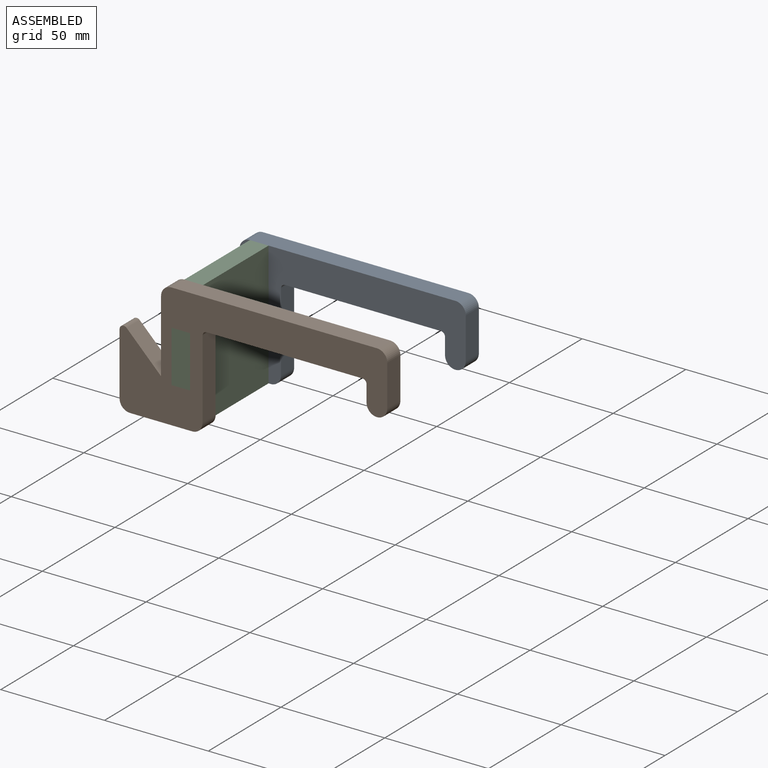
[diagram: assembled view]
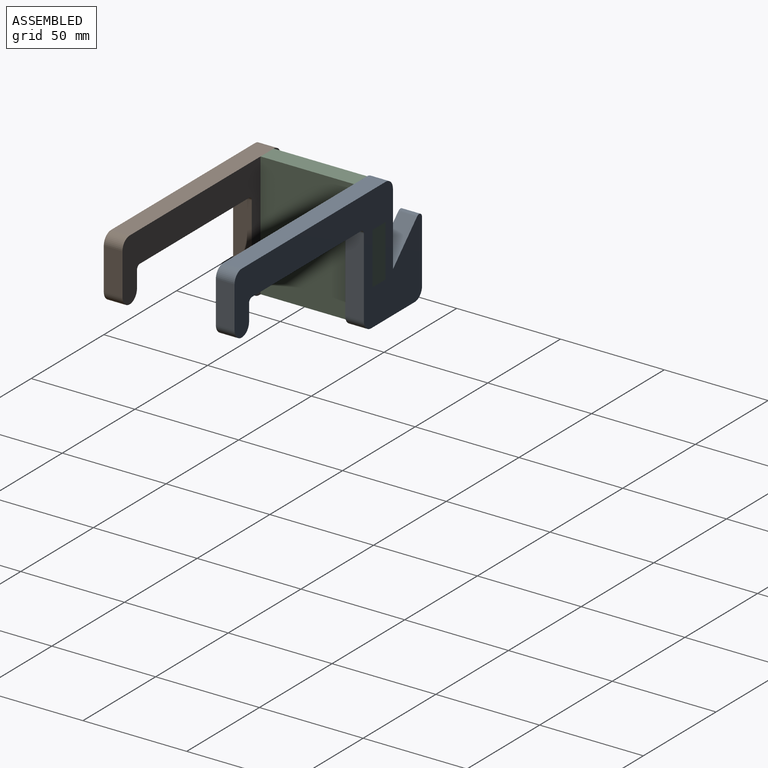
[diagram: assembled view, second angle]
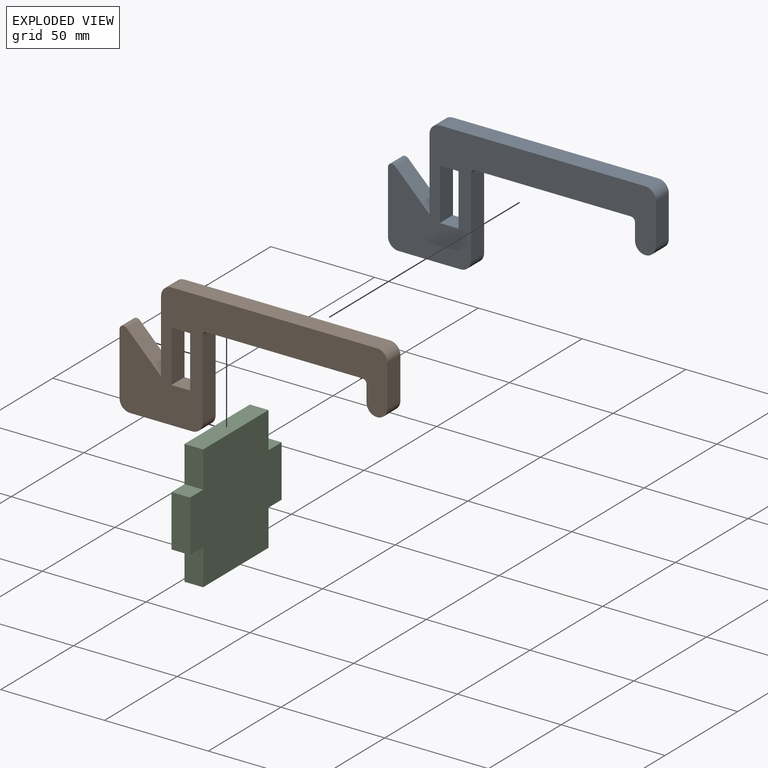
[diagram: exploded view]
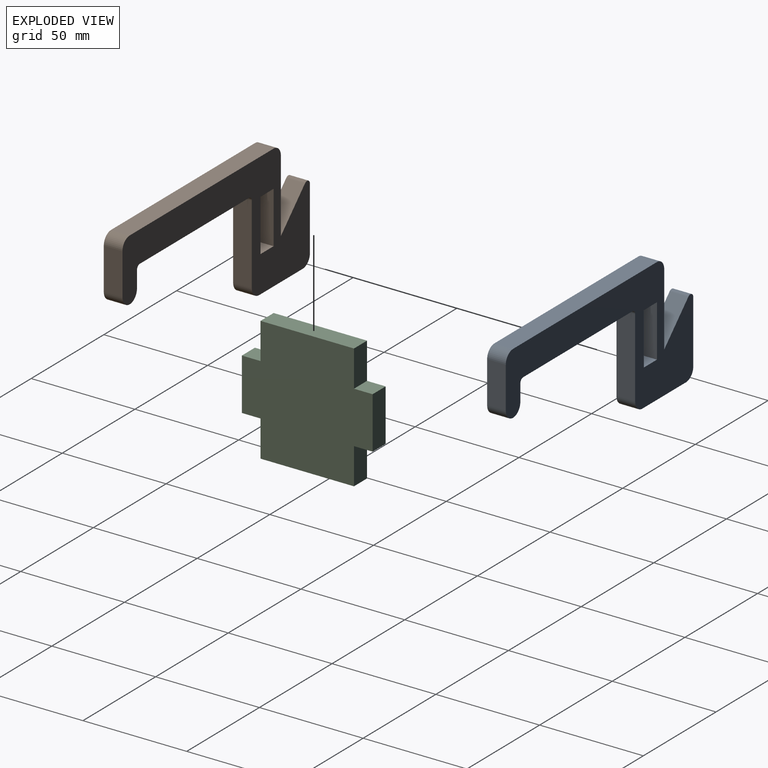
[diagram: exploded view, second angle]
ASSEMBLY  parts=3 mates=2
PART A: 23 faces, bbox 129x60x9 mm
  f0: plane 30.17x9mm, normal (-1,0,0), area 271.5mm2, adj f13,f14,f19,f20
  f1: plane 16.59x16.59mm, normal (0.71,-0.71,0), area 211.1mm2, adj f2,f13,f14,f20
  f2: plane 35x9mm, normal (-1,0,0), area 315mm2, adj f1,f13,f14,f15
  f3: plane 99x9mm, normal (0,-1,0), area 891mm2, adj f13,f14,f15,f16
  f4: plane 20x9mm, normal (1,0,0), area 180mm2, adj f13,f14,f16,f17
  f5: plane 9x8mm, normal (-1,0,0), area 72mm2, adj f13,f14,f17,f21
  f6: plane 75x9mm, normal (0,1,0), area 675mm2, adj f13,f14,f21,f22
  f7: plane 38x9mm, normal (1,0,0), area 342mm2, adj f13,f14,f18,f22
  f8: plane 25x9mm, normal (1,0,0), area 225mm2, adj f9,f11,f13,f14
  f9: plane 9x9mm, normal (0,-1,0), area 81mm2, adj f8,f10,f13,f14
  f10: plane 25x9mm, normal (-1,0,0), area 225mm2, adj f9,f11,f13,f14
  f11: plane 9x9mm, normal (0,1,0), area 81mm2, adj f8,f10,f13,f14
  f12: plane 30x9mm, normal (0,1,0), area 270mm2, adj f13,f14,f18,f19
  f13: plane 129x60mm, normal (0,0,1), area 3024.6mm2, adj f0,f1,f2,f3,f4,f5,f6,f7
  f14: plane 129x60mm, normal (0,0,-1), area 3024.6mm2, adj f0,f1,f2,f3,f4,f5,f6,f7
  f15: cylinder r=5mm len=9mm, axis (0,0,-1), area 70.7mm2, adj f2,f3,f13,f14
  f16: cylinder r=5mm len=9mm, axis (0,0,-1), area 70.7mm2, adj f3,f4,f13,f14
  f17: cylinder r=5mm len=10mm, axis (0,0,-1), area 141.4mm2, adj f4,f5,f13,f14
  f18: cylinder r=5mm len=9mm, axis (0,0,-1), area 70.7mm2, adj f7,f12,f13,f14
  f19: cylinder r=5mm len=9mm, axis (0,0,-1), area 70.7mm2, adj f0,f12,f13,f14
  f20: cylinder r=2mm len=9mm, axis (0,0,1), area 42.4mm2, adj f0,f1,f13,f14
  f21: cylinder r=2mm len=9mm, axis (0,0,1), area 28.3mm2, adj f5,f6,f13,f14
  f22: cylinder r=2mm len=9mm, axis (0,0,1), area 28.3mm2, adj f6,f7,f13,f14
PART B: same geometry as A
PART C: 14 faces, bbox 63x60x9 mm
  f0: plane 25x8.95mm, normal (1,0,0), area 223.8mm2, adj f1,f5,f11,f12
  f1: plane 9x8.95mm, normal (0,1,0), area 80.6mm2, adj f0,f10,f11,f12
  f2: plane 9x8.95mm, normal (0,1,0), area 80.6mm2, adj f3,f8,f11,f13
  f3: plane 25x8.95mm, normal (-1,0,0), area 223.8mm2, adj f2,f4,f11,f13
  f4: plane 9x8.95mm, normal (0,-1,0), area 80.6mm2, adj f3,f8,f11,f13
  f5: plane 9x8.95mm, normal (0,-1,0), area 80.6mm2, adj f0,f10,f11,f12
  f6: plane 60x45mm, normal (0,0,1), area 2700mm2, adj f7,f8,f9,f10
  f7: plane 45x9mm, normal (0,1,0), area 405mm2, adj f6,f8,f10,f11
  f8: plane 60x9mm, normal (-1,0,0), area 316.2mm2, adj f2,f4,f6,f7,f9,f11,f13
  f9: plane 45x9mm, normal (0,-1,0), area 405mm2, adj f6,f8,f10,f11
  f10: plane 60x9mm, normal (1,0,0), area 316.2mm2, adj f1,f5,f6,f7,f9,f11,f12
  f11: plane 63x60mm, normal (0,0,-1), area 3150mm2, adj f0,f1,f2,f3,f4,f5,f7,f8
  f12: plane 25x9mm, normal (0,0,1), area 225mm2, adj f0,f1,f5,f10
  f13: plane 25x9mm, normal (0,0,1), area 225mm2, adj f2,f3,f4,f8
PLACE A rot(axis=(-1,0,0),90deg) t=(-70.47,65,121.5)mm
PLACE B rot(axis=(-1,0,0),90deg) t=(-70.47,11,121.5)mm
PLACE C rot(axis=(0.58,-0.58,-0.58),120deg) t=(-36.5,42.5,81.5)mm
MATE fastened C.f0 <-> B.f14  axis (0,-1,0) through (-40.97,11,111.5)mm
MATE fastened C.f3 <-> A.f13  axis (0,1,0) through (-40.97,74,111.5)mm
